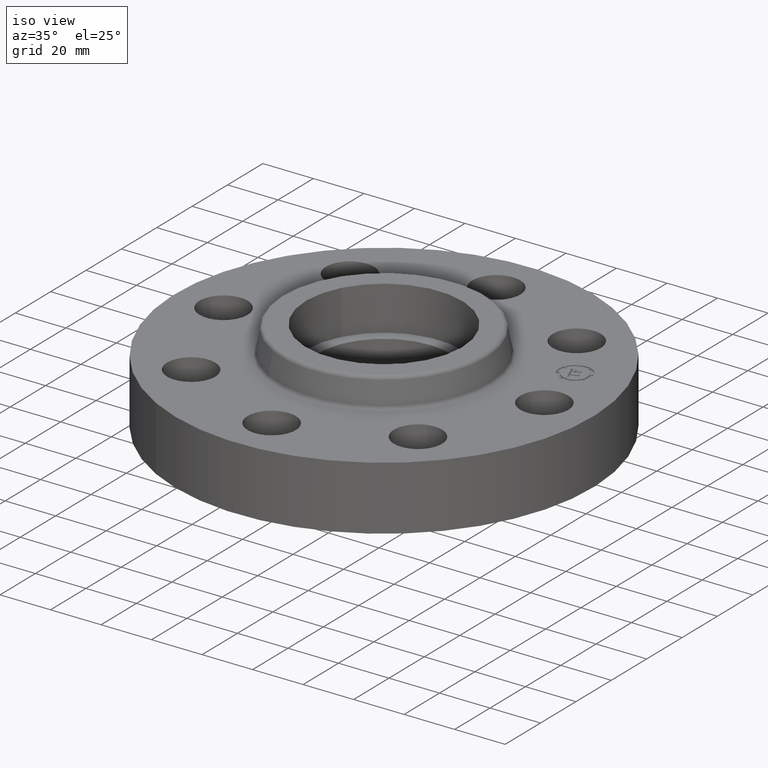
[diagram: clean part render]
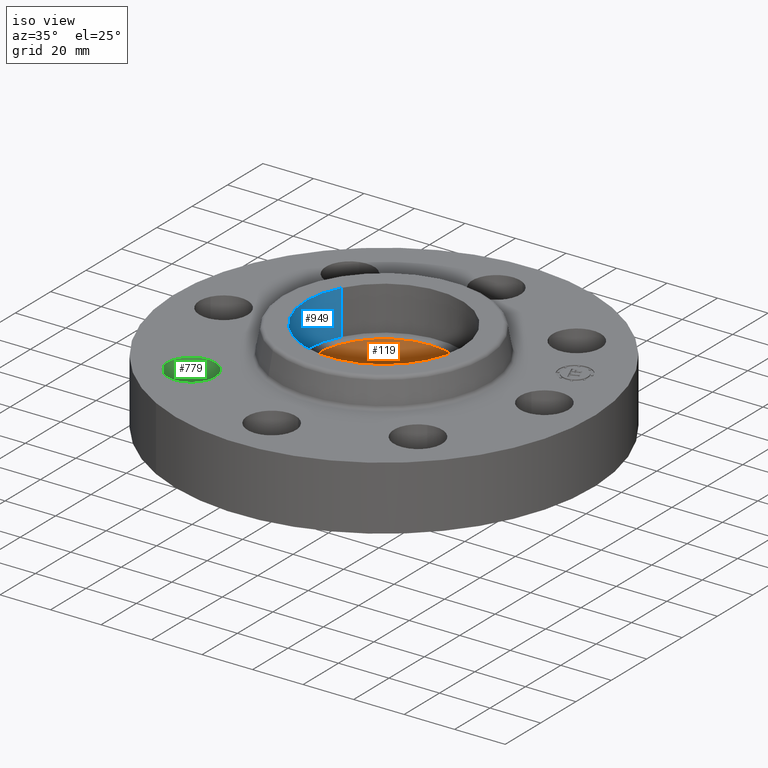
[diagram: same view with three faces highlighted in distinct colors, each labeled with its STEP entity id]
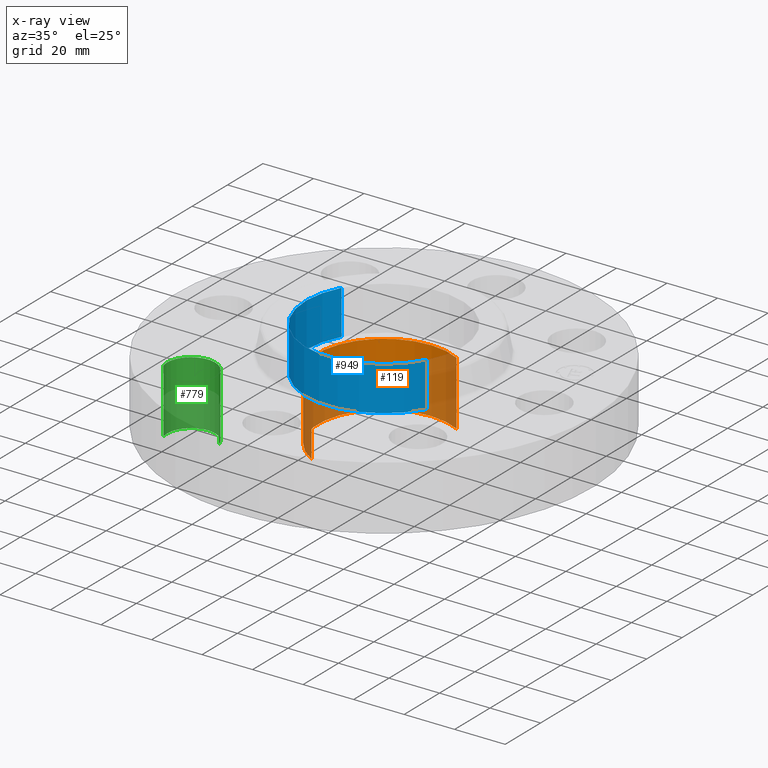
[diagram: x-ray of the same camera — body ghosted, the three highlighted faces saturated]
A machine part, iso view with three faces highlighted in distinct colors.
The next image is the same camera in x-ray (body ghosted, the three faces saturated) — at least one of them is partly hidden behind the body in this view.
Their STEP definitions:

[orange] entity #119 — the highlighted cylindrical surface (partial cylindrical patch) has radius 26.2509 mm, axis along (0, 0, -1).
#60=AXIS2_PLACEMENT_3D('Circle Axis2P3D',#58,#59,$) ;
#80=AXIS2_PLACEMENT_3D('Cylinder Axis2P3D',#77,#78,#79) ;
#110=AXIS2_PLACEMENT_3D('Circle Axis2P3D',#108,#109,$) ;
#58=CARTESIAN_POINT('Axis2P3D Location',(1.39870617276E-016,-6.99353086378E-017,0.750000000003)) ;
#62=CARTESIAN_POINT('Vertex',(-0.495486294149,-0.906981577717,0.750000000003)) ;
#64=CARTESIAN_POINT('Vertex',(0.495486294149,0.906981577717,0.750000000003)) ;
#77=CARTESIAN_POINT('Axis2P3D Location',(0.,0.,0.595000000002)) ;
#82=CARTESIAN_POINT('Line Origine',(0.495486294149,0.906981577717,0.250000000001)) ;
#86=CARTESIAN_POINT('Vertex',(0.495486294149,0.906981577717,-0.250000000001)) ;
#93=CARTESIAN_POINT('Vertex',(-0.495486294149,-0.906981577717,-0.250000000001)) ;
#96=CARTESIAN_POINT('Line Origine',(-0.495486294149,-0.906981577717,0.250000000001)) ;
#108=CARTESIAN_POINT('Axis2P3D Location',(0.,0.,-0.250000000001)) ;
#59=DIRECTION('Axis2P3D Direction',(0.,0.,-0.0393700787402)) ;
#78=DIRECTION('Axis2P3D Direction',(0.,0.,-0.0393700787402)) ;
#79=DIRECTION('Axis2P3D XDirection',(-0.0188750212049,-0.0345504945626,0.)) ;
#83=DIRECTION('Vector Direction',(0.,0.,-0.0393700787402)) ;
#97=DIRECTION('Vector Direction',(0.,0.,-0.0393700787402)) ;
#109=DIRECTION('Axis2P3D Direction',(0.,0.,-0.0393700787402)) ;
#84=VECTOR('Line Direction',#83,0.0393700787402) ;
#98=VECTOR('Line Direction',#97,0.0393700787402) ;
#114=ORIENTED_EDGE('',*,*,#100,.T.) ;
#115=ORIENTED_EDGE('',*,*,#112,.T.) ;
#116=ORIENTED_EDGE('',*,*,#88,.F.) ;
#117=ORIENTED_EDGE('',*,*,#66,.F.) ;
#119=ADVANCED_FACE('PartBody',(#118),#81,.F.) ;
#61=CIRCLE('generated circle',#60,1.0335) ;
#111=CIRCLE('generated circle',#110,1.0335) ;
#81=CYLINDRICAL_SURFACE('generated cylinder',#80,1.0335) ;
#66=EDGE_CURVE('',#63,#65,#61,.T.) ;
#88=EDGE_CURVE('',#65,#87,#85,.T.) ;
#100=EDGE_CURVE('',#63,#94,#99,.T.) ;
#112=EDGE_CURVE('',#94,#87,#111,.T.) ;
#113=EDGE_LOOP('',(#114,#115,#116,#117)) ;
#118=FACE_OUTER_BOUND('',#113,.T.) ;
#85=LINE('Line',#82,#84) ;
#99=LINE('Line',#96,#98) ;
#63=VERTEX_POINT('',#62) ;
#65=VERTEX_POINT('',#64) ;
#87=VERTEX_POINT('',#86) ;
#94=VERTEX_POINT('',#93) ;

[blue] entity #949 — the highlighted cylindrical surface (partial cylindrical patch) has radius 30.988 mm, axis along (0, 0, -1).
#51=AXIS2_PLACEMENT_3D('Circle Axis2P3D',#49,#50,$) ;
#569=AXIS2_PLACEMENT_3D('Circle Axis2P3D',#567,#568,$) ;
#924=AXIS2_PLACEMENT_3D('Cylinder Axis2P3D',#921,#922,#923) ;
#44=CARTESIAN_POINT('Vertex',(-1.07065072551,0.584899157099,0.750000000003)) ;
#46=CARTESIAN_POINT('Vertex',(1.07065072551,-0.584899157099,0.750000000003)) ;
#49=CARTESIAN_POINT('Axis2P3D Location',(1.39870617276E-016,3.84644197508E-016,0.750000000003)) ;
#562=CARTESIAN_POINT('Vertex',(-1.07065072551,0.584899157099,1.44000000001)) ;
#564=CARTESIAN_POINT('Vertex',(1.07065072551,-0.584899157099,1.44000000001)) ;
#567=CARTESIAN_POINT('Axis2P3D Location',(1.74838271595E-016,8.39223703654E-016,1.44000000001)) ;
#921=CARTESIAN_POINT('Axis2P3D Location',(1.39870617276E-016,3.84644197508E-016,1.43606299213)) ;
#926=CARTESIAN_POINT('Line Origine',(-1.07065072551,0.584899157099,1.095)) ;
#931=CARTESIAN_POINT('Line Origine',(1.07065072551,-0.584899157099,1.095)) ;
#50=DIRECTION('Axis2P3D Direction',(0.,0.,-0.0393700787402)) ;
#568=DIRECTION('Axis2P3D Direction',(0.,0.,-0.0393700787402)) ;
#922=DIRECTION('Axis2P3D Direction',(0.,0.,-0.0393700787402)) ;
#923=DIRECTION('Axis2P3D XDirection',(0.0345504945626,-0.0188750212049,0.)) ;
#927=DIRECTION('Vector Direction',(0.,0.,-0.0393700787402)) ;
#932=DIRECTION('Vector Direction',(0.,0.,-0.0393700787402)) ;
#928=VECTOR('Line Direction',#927,0.0393700787402) ;
#933=VECTOR('Line Direction',#932,0.0393700787402) ;
#944=ORIENTED_EDGE('',*,*,#571,.F.) ;
#945=ORIENTED_EDGE('',*,*,#935,.F.) ;
#946=ORIENTED_EDGE('',*,*,#53,.T.) ;
#947=ORIENTED_EDGE('',*,*,#930,.T.) ;
#949=ADVANCED_FACE('PartBody',(#948),#925,.F.) ;
#52=CIRCLE('generated circle',#51,1.22) ;
#570=CIRCLE('generated circle',#569,1.22) ;
#925=CYLINDRICAL_SURFACE('generated cylinder',#924,1.22) ;
#53=EDGE_CURVE('',#47,#45,#52,.T.) ;
#571=EDGE_CURVE('',#565,#563,#570,.T.) ;
#930=EDGE_CURVE('',#45,#563,#929,.F.) ;
#935=EDGE_CURVE('',#47,#565,#934,.F.) ;
#943=EDGE_LOOP('',(#944,#945,#946,#947)) ;
#948=FACE_OUTER_BOUND('',#943,.T.) ;
#929=LINE('Line',#926,#928) ;
#934=LINE('Line',#931,#933) ;
#45=VERTEX_POINT('',#44) ;
#47=VERTEX_POINT('',#46) ;
#563=VERTEX_POINT('',#562) ;
#565=VERTEX_POINT('',#564) ;

[green] entity #779 — the highlighted cylindrical surface (edge-blend (fillet) strip) has radius 9.525 mm, axis along (-0, 0, -1).
#283=AXIS2_PLACEMENT_3D('Circle Axis2P3D',#281,#282,$) ;
#752=AXIS2_PLACEMENT_3D('Cylinder Axis2P3D',#749,#750,#751) ;
#770=AXIS2_PLACEMENT_3D('Circle Axis2P3D',#768,#769,$) ;
#276=CARTESIAN_POINT('Vertex',(-1.40793584173,-1.66218962879,0.)) ;
#278=CARTESIAN_POINT('Vertex',(-2.12759806422,-1.87334427715,0.)) ;
#281=CARTESIAN_POINT('Axis2P3D Location',(-1.76776695297,-1.76776695297,0.)) ;
#749=CARTESIAN_POINT('Axis2P3D Location',(-1.76776695297,-1.76776695297,0.99606299213)) ;
#754=CARTESIAN_POINT('Line Origine',(-2.12759806422,-1.87334427715,0.500000000002)) ;
#758=CARTESIAN_POINT('Vertex',(-2.12759806422,-1.87334427715,1.)) ;
#761=CARTESIAN_POINT('Line Origine',(-1.40793584173,-1.66218962879,0.500000000002)) ;
#765=CARTESIAN_POINT('Vertex',(-1.40793584173,-1.66218962879,1.)) ;
#768=CARTESIAN_POINT('Axis2P3D Location',(-1.76776695297,-1.76776695297,1.)) ;
#282=DIRECTION('Axis2P3D Direction',(0.,0.,-0.0393700787402)) ;
#750=DIRECTION('Axis2P3D Direction',(-0.,0.,-0.0393700787402)) ;
#751=DIRECTION('Axis2P3D XDirection',(0.0377775444876,0.0110842335096,-0.)) ;
#755=DIRECTION('Vector Direction',(0.,0.,-0.0393700787402)) ;
#762=DIRECTION('Vector Direction',(0.,0.,-0.0393700787402)) ;
#769=DIRECTION('Axis2P3D Direction',(-0.,0.,-0.0393700787402)) ;
#756=VECTOR('Line Direction',#755,0.0393700787402) ;
#763=VECTOR('Line Direction',#762,0.0393700787402) ;
#774=ORIENTED_EDGE('',*,*,#760,.F.) ;
#775=ORIENTED_EDGE('',*,*,#285,.T.) ;
#776=ORIENTED_EDGE('',*,*,#767,.T.) ;
#777=ORIENTED_EDGE('',*,*,#772,.F.) ;
#779=ADVANCED_FACE('PartBody',(#778),#753,.F.) ;
#284=CIRCLE('generated circle',#283,0.375000000001) ;
#771=CIRCLE('generated circle',#770,0.375000000001) ;
#753=CYLINDRICAL_SURFACE('generated cylinder',#752,0.375000000001) ;
#285=EDGE_CURVE('',#279,#277,#284,.T.) ;
#760=EDGE_CURVE('',#279,#759,#757,.F.) ;
#767=EDGE_CURVE('',#277,#766,#764,.F.) ;
#772=EDGE_CURVE('',#759,#766,#771,.T.) ;
#773=EDGE_LOOP('',(#774,#775,#776,#777)) ;
#778=FACE_OUTER_BOUND('',#773,.T.) ;
#757=LINE('Line',#754,#756) ;
#764=LINE('Line',#761,#763) ;
#277=VERTEX_POINT('',#276) ;
#279=VERTEX_POINT('',#278) ;
#759=VERTEX_POINT('',#758) ;
#766=VERTEX_POINT('',#765) ;